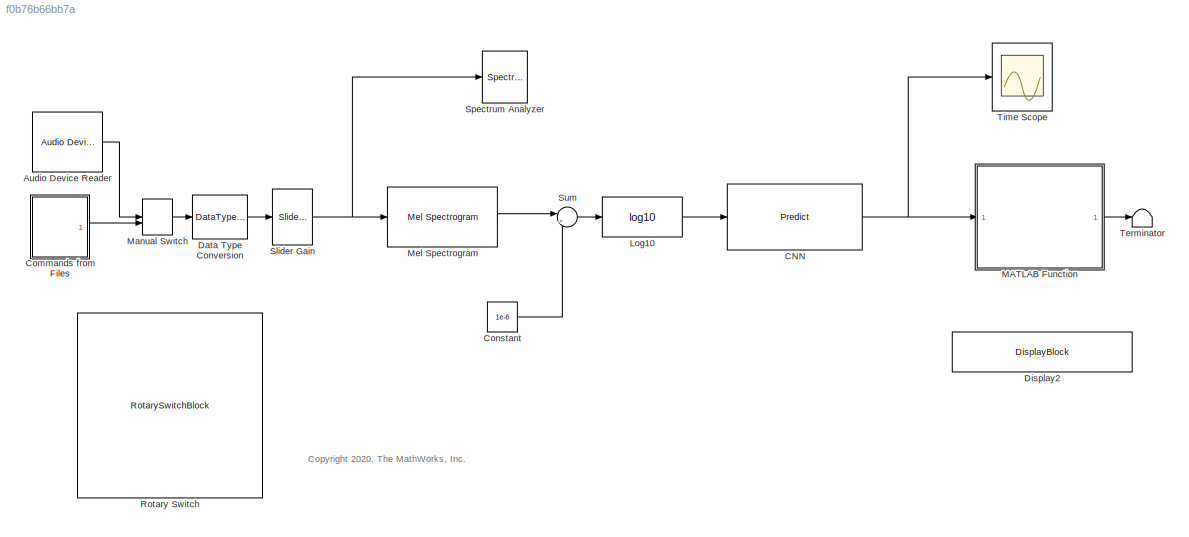
MODEL slx_f0b76b66bb7a
KIND model
CONFIG AbsTol = auto
CONFIG EnableMultiTasking = off
CONFIG FixedStep = auto
CONFIG InitFcn = % Specify the audio sampling rate and classification rate in Hz and create\n% an audio device reader that can read audio from your microphone.\nfs = 16e3;\nclassificationRate = 10;\nepsil = 1e-6;\nnumBands = 40;\n\n% Audio device samples per frame \nsamplesPerFrame = floor(fs/classificationRate);\n\n% Specify frameDuration and hopDuration for the melSpectrogram (in seconds)\nframeDuration = 0.025;\nhopDuratio...<+277ch>
CONFIG MaxStep = auto
CONFIG MinStep = auto
CONFIG RelTol = 1e-3
CONFIG SampleTimeConstraint = Unconstrained
CONFIG SolverName = FixedStepDiscrete
CONFIG StartTime = 0.0
CONFIG StopTime = inf
BLOCK [Reference] Audio Device Reader  REF=audiosources/Audio Device
Reader
  Ports = [0, 1]
  SourceBlock = audiosources/Audio Device\nReader
  SourceType = Audio Device Reader
BLOCK [Reference] CNN  REF=deeplib/Predict
  Ports = [1, 1]
  SourceBlock = deeplib/Predict
  SourceType = Predict
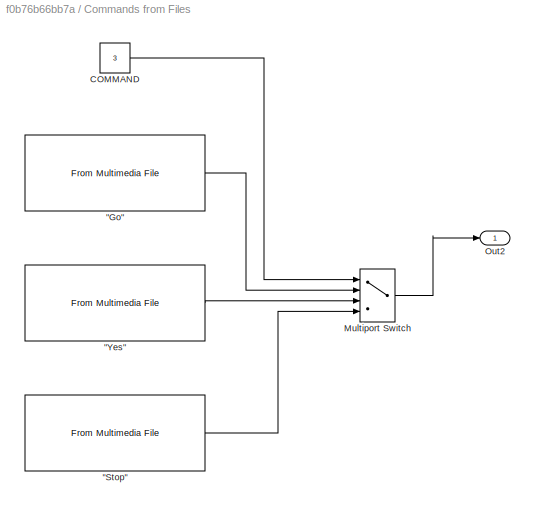
BLOCK [SubSystem] Commands from Files
  Ports = [0, 1]
BLOCK [Reference] Commands from Files/ "Stop"  REF=dspvision/From Multimedia File
  Ports = [0, 1]
  SourceBlock = dspvision/From Multimedia File
  SourceType = From Multimedia File
BLOCK [Reference] Commands from Files/"Go"  REF=dspvision/From Multimedia File
  Ports = [0, 1]
  SourceBlock = dspvision/From Multimedia File
  SourceType = From Multimedia File
BLOCK [Reference] Commands from Files/"Yes"  REF=dspvision/From Multimedia File
  Ports = [0, 1]
  SourceBlock = dspvision/From Multimedia File
  SourceType = From Multimedia File
BLOCK [Constant] Commands from Files/COMMAND
  Value = 3
BLOCK [MultiPortSwitch] Commands from Files/Multiport Switch
  InputSameDT = off
  Ports = [4, 1]
  SaturateOnIntegerOverflow = off
BLOCK [Outport] Commands from Files/Out2
BLOCK [Constant] Constant
  Value = 1e-6
BLOCK [DataTypeConversion] Data Type Conversion
  OutDataTypeStr = single
  RndMeth = Floor
  SaturateOnIntegerOverflow = off
BLOCK [DisplayBlock] Display2
  LabelPosition = Hide
BLOCK [Math] Log10
  Operator = log10
  Ports = [1, 1]
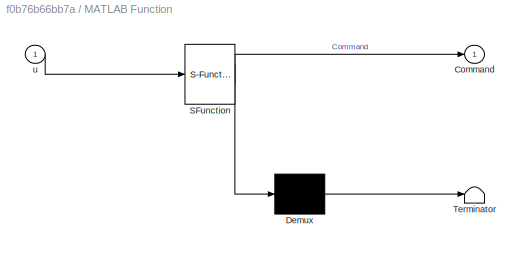
BLOCK [SubSystem] MATLAB Function
  ErrorFcn = Stateflow.Translate.translate
  PermitHierarchicalResolution = ExplicitOnly
  Ports = [1, 1]
  SFBlockType = MATLAB Function
  TreatAsAtomicUnit = on
BLOCK [Demux] MATLAB Function/ Demux 
  Outputs = 1
  Ports = [1, 1]
BLOCK [S-Function] MATLAB Function/ SFunction 
  EnableBusSupport = off
  FunctionName = sf_sfun
  Parameters = classificationRate
  PortCounts = [1 2]
  Ports = [1, 2]
  SFcnIsStateOwnerBlock = off
  SFunctionDeploymentMode = off
  Tag = Stateflow S-Function 4
BLOCK [Terminator] MATLAB Function/ Terminator 
BLOCK [Outport] MATLAB Function/Command
BLOCK [Inport] MATLAB Function/u
BLOCK [ManualSwitch] Manual Switch
  CurrentSetting = 0
BLOCK [Reference] Mel Spectrogram  REF=audiofeatures/Mel Spectrogram
  Ports = [1, 1]
  SourceBlock = audiofeatures/Mel Spectrogram
  SourceType = Mel Spectrogram
BLOCK [RotarySwitchBlock] Rotary Switch
BLOCK [Reference] Slider Gain  REF=simulink/Math
Operations/Slider
Gain
  Ports = [1, 1]
  SourceBlock = simulink/Math\nOperations/Slider\nGain
  SourceType = Slider Gain
BLOCK [SpectrumAnalyzer] Spectrum Analyzer
  Ports = [1]
  ScopeSpecificationString = spbscopes.SpectrumAnalyzerBlockCfg('CurrentConfiguration', extmgr.ConfigurationSet(extmgr.Configuration('Core','General UI',true),extmgr.Configuration('Core','Source UI',true),extmgr.Configuration('Sources','WiredSimulink',true),extmgr.Configuration('Visuals','Spectrum',true,'AxesProperties',struct('Color',{[0 0 0],[0 0 0]},'XColor',{[0.686274509803922 0.686274509803922 0.686274509803922],[0.68627...<+2178ch>
BLOCK [Sum] Sum
  Inputs = |++
  Ports = [2, 1]
BLOCK [Terminator] Terminator
BLOCK [Scope] Time Scope
  DefaultConfigurationName = spbscopes.TimeScopeBlockCfg
  Floating = off
  NumInputPorts = 1
  Ports = [1]
  ScopeSpecificationString = spbscopes.TimeScopeBlockCfg('CurrentConfiguration', extmgr.ConfigurationSet(extmgr.Configuration('Core','General UI',true),extmgr.Configuration('Core','Source UI',true),extmgr.Configuration('Sources','WiredSimulink',true,'LockSynchronous',true,'DataLoggingVariableName','ScopeData1'),extmgr.Configuration('Visuals','Time Domain',true,'DisplayPropertyDefaults',struct('MinYLimReal','-14.22346','MaxYLi...<+2395ch>
  UserDataPersistent = on
ANNOTATION (root): <copyright redacted>
LINE Audio Device Reader:1 -> Manual Switch:1
NET CNN:1 -> MATLAB Function:1, Time Scope:1
LINE Commands from Files/ "Stop":1 -> Commands from Files/Multiport Switch:4
LINE Commands from Files/"Go":1 -> Commands from Files/Multiport Switch:2
LINE Commands from Files/"Yes":1 -> Commands from Files/Multiport Switch:3
LINE Commands from Files/COMMAND:1 -> Commands from Files/Multiport Switch:1
LINE Commands from Files/Multiport Switch:1 -> Commands from Files/Out2:1
LINE Commands from Files:1 -> Manual Switch:2
LINE Constant:1 -> Sum:2
LINE Data Type Conversion:1 -> Slider Gain:1
LINE Log10:1 -> CNN:1
LINE MATLAB Function:1 -> Terminator:1
LINE Manual Switch:1 -> Data Type Conversion:1
LINE Mel Spectrogram:1 -> Sum:1
NET Slider Gain:1 -> Mel Spectrogram:1, Spectrum Analyzer:1
LINE Sum:1 -> Log10:1
note: NET lines group one-source signal fan-out (src -> all destinations, sorted); 1:1 wires keep LINE
CHART MATLAB Function states=1 transitions=1
  STATE_LABEL 'eML_blk_kernel()'
  STATE_LABEL 'SCRIPT:\nfunction Command = postProcess(u,classificationRate)\n\n    persistent YBuffer probBuffer\n    \n    if(isempty(YBuffer))\n        YBuffer = ones(classificationRate,1);\n        probBuffer = zeros([numel(u),round(classificationRate/2)]);\n        prevCommand = SpeechCommands(0);\n    end\n    \n    % Input u is array of 12 probability values (which word was most likely\n    % to be spoken)\n\n    % Fin...<+1069ch>'
CHART  states=0 transitions=0
